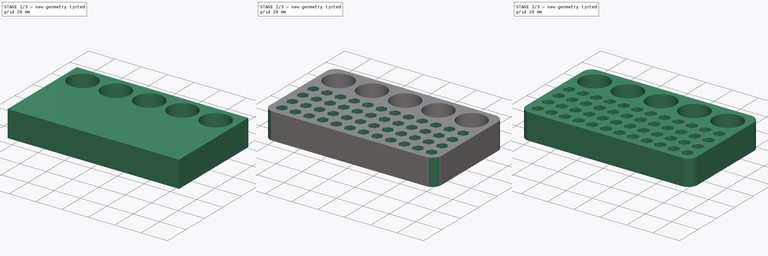
[diagram: build sequence overview — one tinted view per stage of 3, left to right]
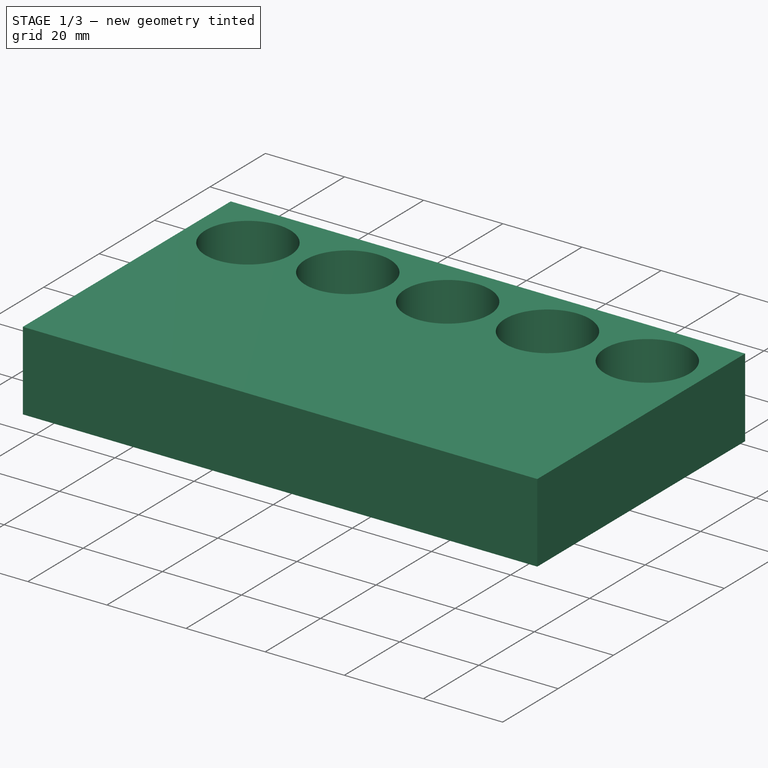
[diagram: stage 1 of 3 — iso view after this stage's code; geometry added in this stage tinted green]
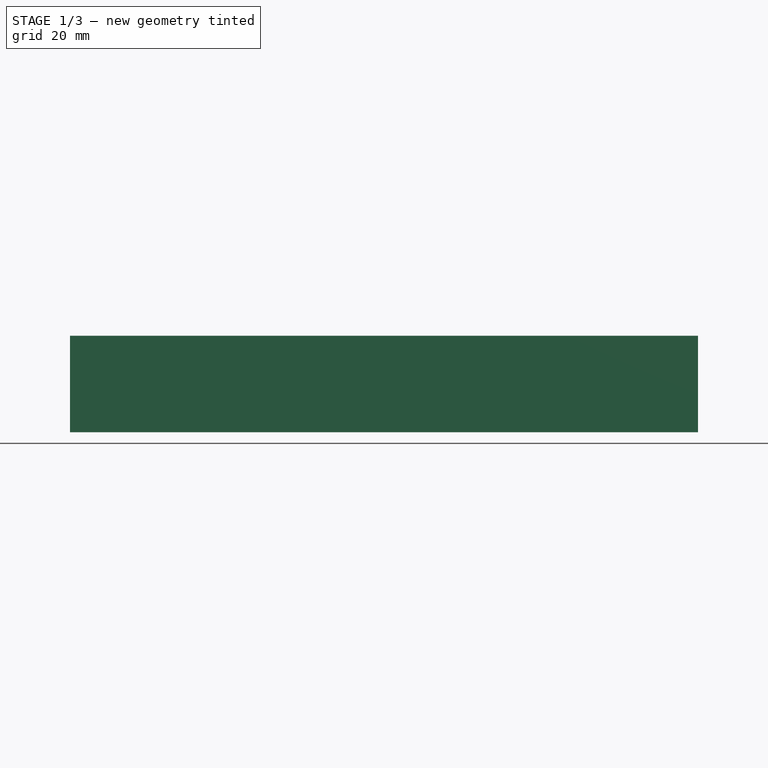
[diagram: stage 1 of 3 — front view after this stage's code; geometry added in this stage tinted green]
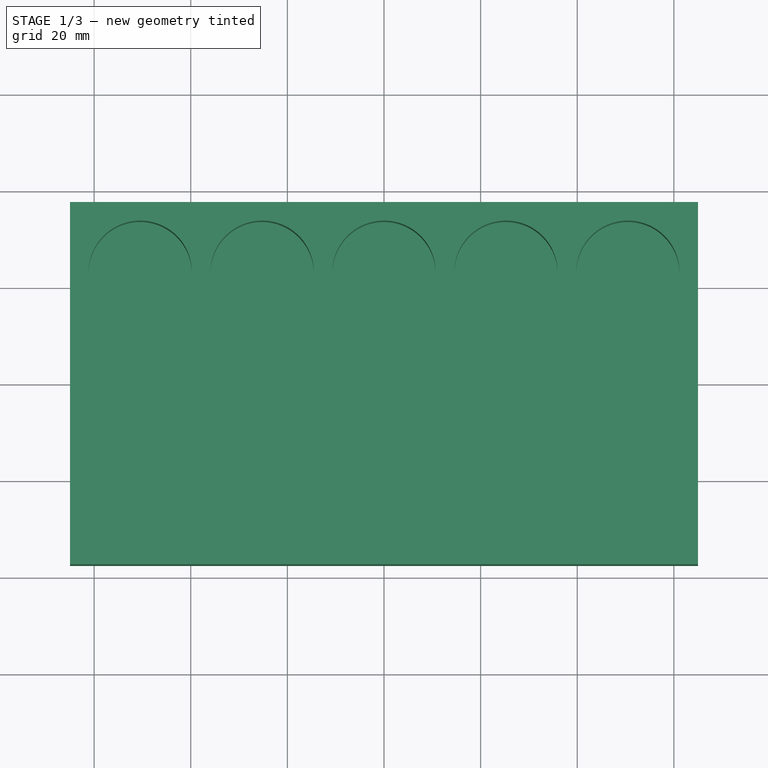
[diagram: stage 1 of 3 — top view after this stage's code; geometry added in this stage tinted green]
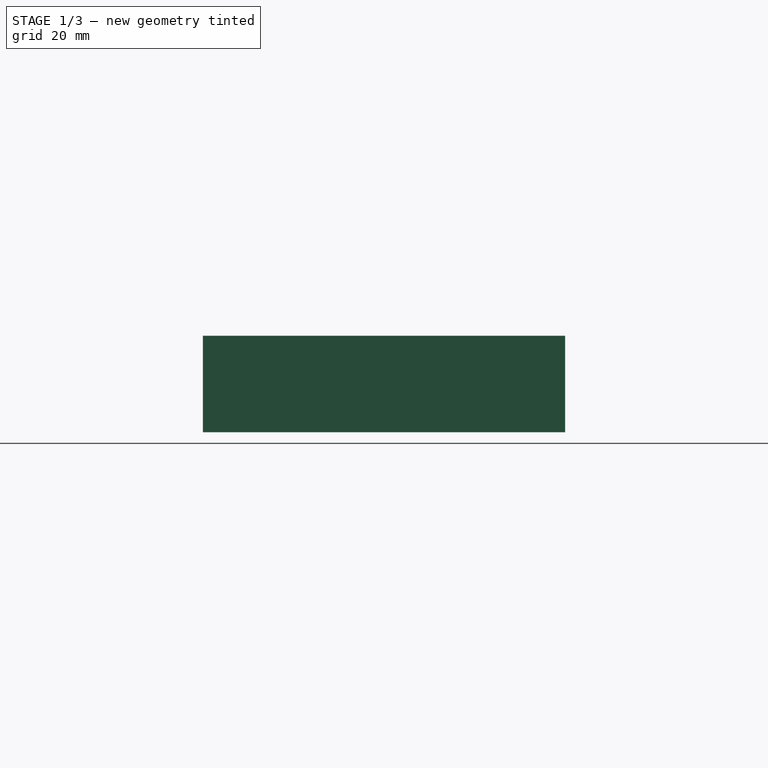
[diagram: stage 1 of 3 — right view after this stage's code; geometry added in this stage tinted green]
FCSTD DOCUMENT  (FreeCAD 0.22R37730 (Git))
Label: Hex Stand
License: All rights reserved
LicenseURL: http://en.wikipedia.org/wiki/All_rights_reserved
objects: Sketcher::SketchObject×3, PartDesign::Fillet×3, PartDesign::Pocket×2, PartDesign::Pad×1, PartDesign::LinearPattern×1, PartDesign::Body×1
note: 17 computed .brp shape members not serialized (recipe doc carries the construction recipe); baked Part::Feature solids carry a one-line shape summary decoded from their .brp

FEATURE [Sketcher::SketchObject] Sketch
  AttachmentSupport = -> [XY_Plane]
  FullyConstrained = true
  MapMode = 5
  Support = -> [XY_Plane]
  sketch-geometry (5):
    g0: LineSegment StartX=-65 StartY=37.5 StartZ=0 EndX=-65 EndY=-37.5 EndZ=0
    g1: LineSegment StartX=-65 StartY=-37.5 StartZ=0 EndX=65 EndY=-37.5 EndZ=0
    g2: LineSegment StartX=65 StartY=-37.5 StartZ=0 EndX=65 EndY=37.5 EndZ=0
    g3: LineSegment StartX=65 StartY=37.5 StartZ=0 EndX=-65 EndY=37.5 EndZ=0
    g4: GeomPoint X=0 Y=0 Z=0
  constraints (12):
    c: Coincident(g0,g1)
    c: Coincident(g1,g2)
    c: Coincident(g2,g3)
    c: Coincident(g3,g0)
    c: Vertical(g0)
    c: Vertical(g2)
    c: Horizontal(g1)
    c: Horizontal(g3)
    c: Symmetric(g2,g0,g4)
    c: DistanceY(g2,g2) = 75
    c: DistanceX(g3,g3) = 130
    c: Coincident(g4,g-1)
FEATURE [PartDesign::Pad] Pad
  Direction = (0,0,1)
  Length = 20
  Length2 = 10
  Profile = -> Sketch
  ReferenceAxis = -> Sketch [N_Axis]
  Suppressed = false
  Type = 0
FEATURE [Sketcher::SketchObject] Sketch001
  AttachmentSupport = -> [Pad]
  ExternalGeometry = -> [Pad]
  FullyConstrained = true
  MapMode = 5
  Placement = pos=(0,0,20) rot=(0,0,1;0rad)
  Support = -> [Pad]
  sketch-geometry (12):
    g0: Circle CenterX=-50.4667 CenterY=22.9667 CenterZ=0 NormalX=0 NormalY=0 NormalZ=1 AngleXU=0 Radius=10.7
    g1: Circle CenterX=-25.2333 CenterY=22.9667 CenterZ=0 NormalX=0 NormalY=0 NormalZ=1 AngleXU=0 Radius=10.7
    g2: Circle CenterX=1.9126e-12 CenterY=22.9667 CenterZ=0 NormalX=0 NormalY=0 NormalZ=1 AngleXU=0 Radius=10.7
    g3: Circle CenterX=25.2333 CenterY=22.9667 CenterZ=0 NormalX=0 NormalY=0 NormalZ=1 AngleXU=0 Radius=10.7
    g4: LineSegment StartX=-65 StartY=22.9667 StartZ=0 EndX=-61.1667 EndY=22.9667 EndZ=0
    g5: LineSegment StartX=-39.7667 StartY=22.9667 StartZ=0 EndX=-35.9333 EndY=22.9667 EndZ=0
    g6: LineSegment StartX=-14.5333 StartY=22.9667 StartZ=0 EndX=-10.7 EndY=22.9667 EndZ=0
    g7: LineSegment StartX=10.7 StartY=22.9667 StartZ=0 EndX=14.5333 EndY=22.9667 EndZ=0
    g8: LineSegment StartX=-50.4667 StartY=33.6667 StartZ=0 EndX=-50.4667 EndY=37.5 EndZ=0
    g9: Circle CenterX=50.4667 CenterY=22.9667 CenterZ=0 NormalX=0 NormalY=0 NormalZ=1 AngleXU=0 Radius=10.7
    g10: LineSegment StartX=35.9333 StartY=22.9667 StartZ=0 EndX=39.7667 EndY=22.9667 EndZ=0
    g11: LineSegment StartX=61.1667 StartY=22.9667 StartZ=0 EndX=65 EndY=22.9667 EndZ=0
  constraints (43):
    c: Diameter(g0) = 21.4
    c: Equal(g0,g1)
    c: Equal(g1,g2)
    c: Equal(g2,g3)
    c: Horizontal(g0,g1)
    c: Horizontal(g1,g2)
    c: Horizontal(g2,g3)
    c: PointOnObject(g4,g-3)
    c: PointOnObject(g4,g0)
    c: Horizontal(g4)
    c: Perpendicular(g0,g4)
    c: PointOnObject(g5,g0)
    c: PointOnObject(g5,g1)
    c: Perpendicular(g0,g5)
    c: Perpendicular(g1,g5)
    c: PointOnObject(g6,g1)
    c: PointOnObject(g6,g2)
    c: Perpendicular(g1,g6)
    c: Perpendicular(g2,g6)
    c: PointOnObject(g7,g2)
    c: PointOnObject(g7,g3)
    c: Perpendicular(g2,g7)
    c: Perpendicular(g3,g7)
    c: Equal(g4,g5)
    c: Equal(g5,g6)
    c: Equal(g6,g7)
    c: PointOnObject(g8,g0)
    c: PointOnObject(g8,g-5)
    c: Vertical(g8)
    c: Perpendicular(g0,g8)
    c: Equal(g4,g8)
    c: Equal(g3,g9)
    c: Horizontal(g9,g3)
    c: PointOnObject(g10,g3)
    c: PointOnObject(g10,g9)
    c: PointOnObject(g11,g9)
    c: PointOnObject(g11,g-4)
    c: Perpendicular(g9,g11)
    c: Perpendicular(g9,g10)
    c: Perpendicular(g3,g10)
    c: Horizontal(g11)
    c: Equal(g10,g11)
    c: Equal(g11,g7)
FEATURE [PartDesign::Pocket] Pocket
  BaseFeature = -> Pad
  Direction = (0,0,-1)
  Length = 18
  Length2 = 5
  Profile = -> Sketch001
  ReferenceAxis = -> Sketch001 [N_Axis]
  Suppressed = false
  Type = 0
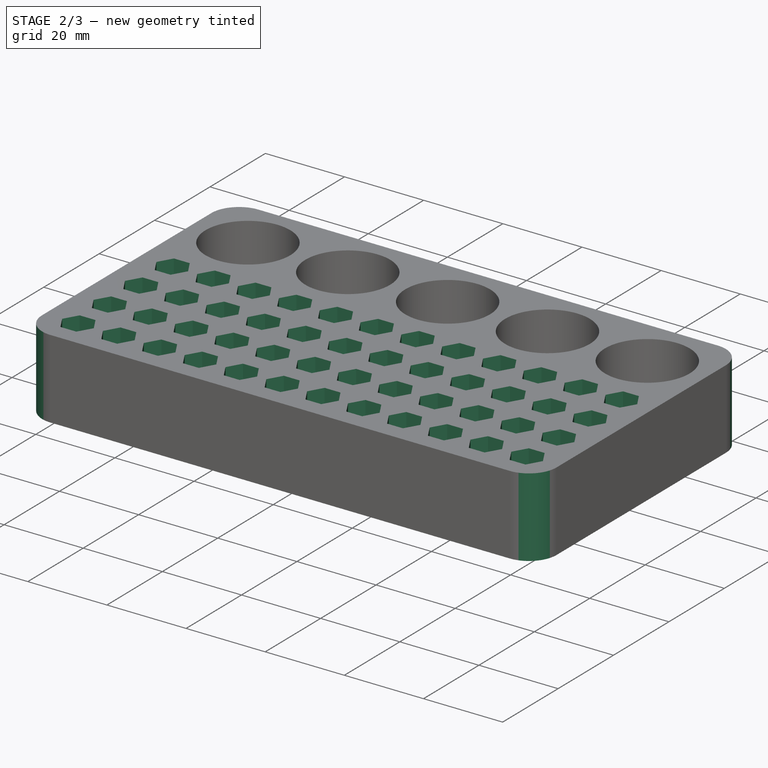
[diagram: stage 2 of 3 — iso view after this stage's code; geometry added in this stage tinted green]
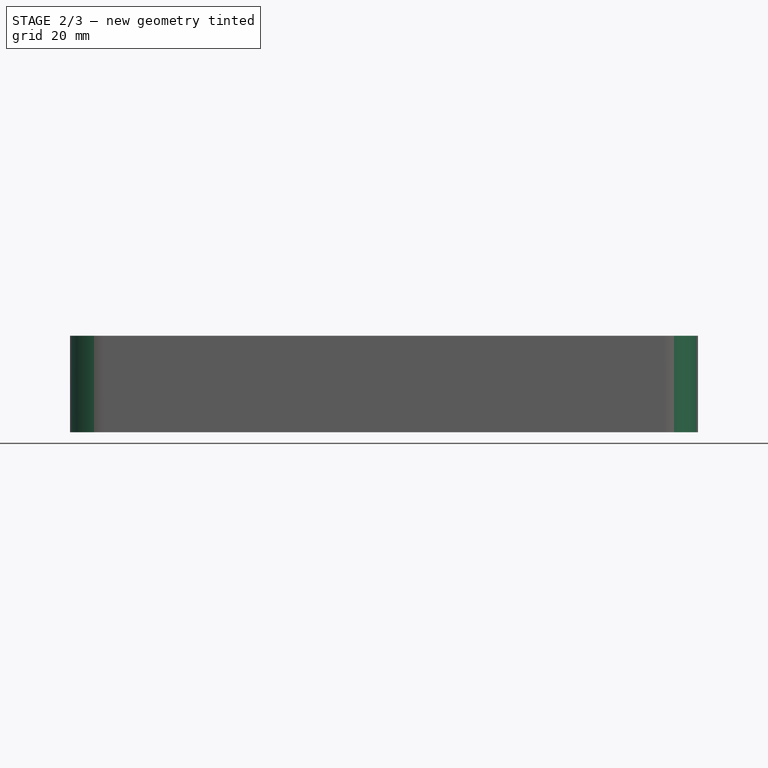
[diagram: stage 2 of 3 — front view after this stage's code; geometry added in this stage tinted green]
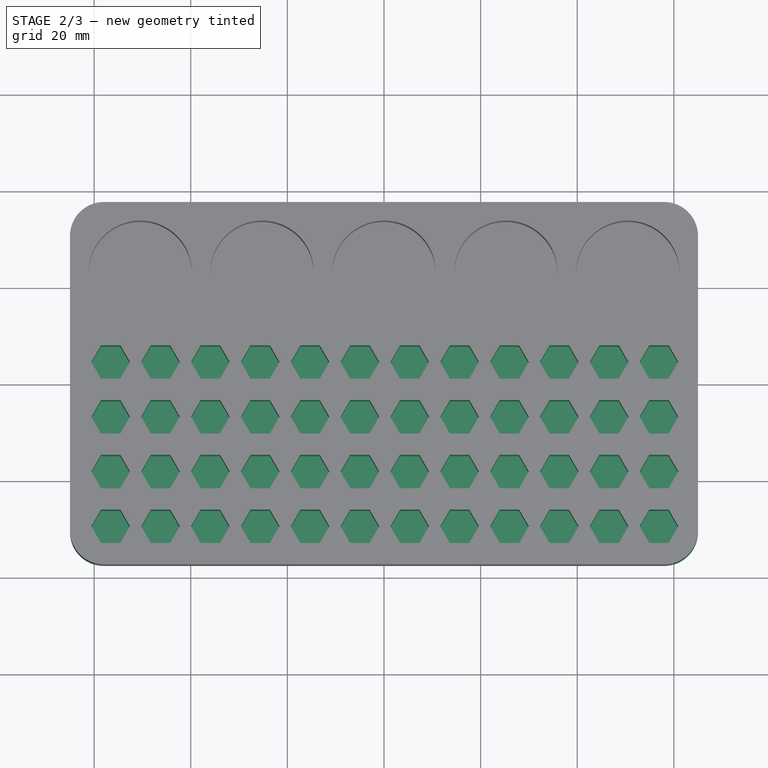
[diagram: stage 2 of 3 — top view after this stage's code; geometry added in this stage tinted green]
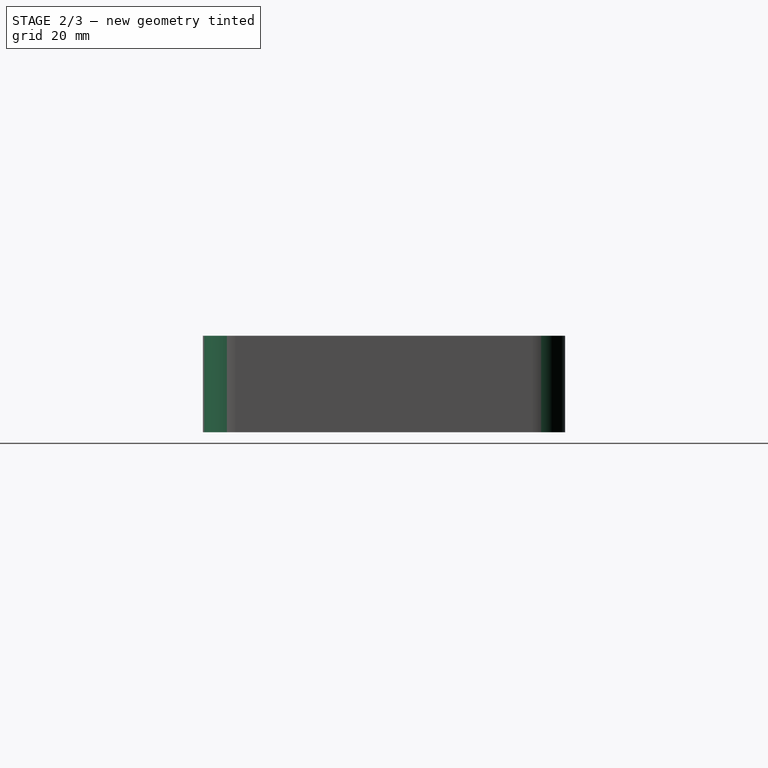
[diagram: stage 2 of 3 — right view after this stage's code; geometry added in this stage tinted green]
FEATURE [Sketcher::SketchObject] Sketch002
  AttachmentSupport = -> [Pocket]
  ExternalGeometry = -> [Pocket]
  FullyConstrained = false
  MapMode = 5
  Placement = pos=(0,0,20) rot=(0,0,1;0rad)
  Support = -> [Pocket]
  sketch-geometry (35):
    g0: LineSegment StartX=-65 StartY=12.2667 StartZ=0 EndX=-28.4556 EndY=12.2667 EndZ=0
    g1: LineSegment StartX=-54.5892 StartY=0.927693 StartZ=0 EndX=-52.5892 EndY=4.39179 EndZ=0
    g2: LineSegment StartX=-52.5892 StartY=4.39179 StartZ=0 EndX=-54.5892 EndY=7.8559 EndZ=0
    g3: LineSegment StartX=-54.5892 StartY=7.8559 StartZ=0 EndX=-58.5892 EndY=7.8559 EndZ=0
    g4: LineSegment StartX=-58.5892 StartY=7.8559 StartZ=0 EndX=-60.5892 EndY=4.39179 EndZ=0
    g5: LineSegment StartX=-60.5892 StartY=4.39179 StartZ=0 EndX=-58.5892 EndY=0.927693 EndZ=0
    g6: LineSegment StartX=-58.5892 StartY=0.927693 StartZ=0 EndX=-54.5892 EndY=0.927693 EndZ=0
    g7: Circle CenterX=-56.5892 CenterY=4.39179 CenterZ=0 NormalX=0 NormalY=0 NormalZ=1 AngleXU=0 Radius=4
    g8: LineSegment StartX=-54.5892 StartY=-10.4113 StartZ=0 EndX=-52.5892 EndY=-6.94718 EndZ=0
    g9: LineSegment StartX=-52.5892 StartY=-6.94718 StartZ=0 EndX=-54.5892 EndY=-3.48308 EndZ=0
    g10: LineSegment StartX=-54.5892 StartY=-3.48308 StartZ=0 EndX=-58.5892 EndY=-3.48308 EndZ=0
    g11: LineSegment StartX=-58.5892 StartY=-3.48308 StartZ=0 EndX=-60.5892 EndY=-6.94718 EndZ=0
    g12: LineSegment StartX=-60.5892 StartY=-6.94718 StartZ=0 EndX=-58.5892 EndY=-10.4113 EndZ=0
    g13: LineSegment StartX=-58.5892 StartY=-10.4113 StartZ=0 EndX=-54.5892 EndY=-10.4113 EndZ=0
    g14: Circle CenterX=-56.5892 CenterY=-6.94718 CenterZ=0 NormalX=0 NormalY=0 NormalZ=1 AngleXU=0 Radius=4
    g15: LineSegment StartX=-54.5892 StartY=-21.7503 StartZ=0 EndX=-52.5892 EndY=-18.2862 EndZ=0
    g16: LineSegment StartX=-52.5892 StartY=-18.2862 StartZ=0 EndX=-54.5892 EndY=-14.8221 EndZ=0
    g17: LineSegment StartX=-54.5892 StartY=-14.8221 StartZ=0 EndX=-58.5892 EndY=-14.8221 EndZ=0
    g18: LineSegment StartX=-58.5892 StartY=-14.8221 StartZ=0 EndX=-60.5892 EndY=-18.2862 EndZ=0
    g19: LineSegment StartX=-60.5892 StartY=-18.2862 StartZ=0 EndX=-58.5892 EndY=-21.7503 EndZ=0
    g20: LineSegment StartX=-58.5892 StartY=-21.7503 StartZ=0 EndX=-54.5892 EndY=-21.7503 EndZ=0
    g21: Circle CenterX=-56.5892 CenterY=-18.2862 CenterZ=0 NormalX=0 NormalY=0 NormalZ=1 AngleXU=0 Radius=4
    g22: LineSegment StartX=-54.5892 StartY=-33.0892 StartZ=0 EndX=-52.5892 EndY=-29.6251 EndZ=0
    g23: LineSegment StartX=-52.5892 StartY=-29.6251 StartZ=0 EndX=-54.5892 EndY=-26.161 EndZ=0
    g24: LineSegment StartX=-54.5892 StartY=-26.161 StartZ=0 EndX=-58.5892 EndY=-26.161 EndZ=0
    g25: LineSegment StartX=-58.5892 StartY=-26.161 StartZ=0 EndX=-60.5892 EndY=-29.6251 EndZ=0
    g26: LineSegment StartX=-60.5892 StartY=-29.6251 StartZ=0 EndX=-58.5892 EndY=-33.0892 EndZ=0
    g27: LineSegment StartX=-58.5892 StartY=-33.0892 StartZ=0 EndX=-54.5892 EndY=-33.0892 EndZ=0
    g28: Circle CenterX=-56.5892 CenterY=-29.6251 CenterZ=0 NormalX=0 NormalY=0 NormalZ=1 AngleXU=0 Radius=4
    g29: LineSegment StartX=-54.5892 StartY=12.2667 StartZ=0 EndX=-54.5892 EndY=7.8559 EndZ=0
    g30: LineSegment StartX=-54.5892 StartY=0.927693 StartZ=0 EndX=-54.5892 EndY=-3.48308 EndZ=0
    g31: LineSegment StartX=-54.5892 StartY=-10.4113 StartZ=0 EndX=-54.5892 EndY=-14.8221 EndZ=0
    g32: LineSegment StartX=-54.5892 StartY=-21.7503 StartZ=0 EndX=-54.5892 EndY=-26.161 EndZ=0
    g33: LineSegment StartX=-54.5892 StartY=-33.0892 StartZ=0 EndX=-54.5892 EndY=-37.5 EndZ=0
    g34: LineSegment StartX=-60.5892 StartY=-29.6251 StartZ=0 EndX=-65 EndY=-29.6251 EndZ=0
  constraints (86):
    c: PointOnObject(g0,g-3)
    c: Tangent(g0,g-5)
    c: Horizontal(g0)
    c: Coincident(g1,g2)
    c: Coincident(g2,g3)
    c: Coincident(g3,g4)
    c: Coincident(g4,g5)
    c: Coincident(g5,g6)
    c: Coincident(g6,g1)
    c: Equal(g1, g2-g6) x5
    c: PointOnObject(g1,g7)
    c: PointOnObject(g2,g7)
    c: PointOnObject(g3,g7)
    c: PointOnObject(g4,g7)
    c: PointOnObject(g5,g7)
    c: PointOnObject(g6,g7)
    c: Coincident(g8,g9)
    c: Coincident(g9,g10)
    c: Coincident(g10,g11)
    c: Coincident(g11,g12)
    c: Coincident(g12,g13)
    c: Coincident(g13,g8)
    c: Equal(g8, g9-g13) x5
    c: PointOnObject(g8,g14)
    c: PointOnObject(g9,g14)
    c: PointOnObject(g10,g14)
    c: PointOnObject(g11,g14)
    c: PointOnObject(g12,g14)
    c: PointOnObject(g13,g14)
    c: Coincident(g15,g16)
    c: Coincident(g16,g17)
    c: Coincident(g17,g18)
    c: Coincident(g18,g19)
    c: Coincident(g19,g20)
    c: Coincident(g20,g15)
    c: Equal(g15, g16-g20) x5
    c: PointOnObject(g15,g21)
    c: PointOnObject(g16,g21)
    c: PointOnObject(g17,g21)
    c: PointOnObject(g18,g21)
    c: PointOnObject(g19,g21)
    c: PointOnObject(g20,g21)
    c: Coincident(g22,g23)
    c: Coincident(g23,g24)
    c: Coincident(g24,g25)
    c: Coincident(g25,g26)
    c: Coincident(g26,g27)
    c: Coincident(g27,g22)
    c: Equal(g22, g23-g27) x5
    c: PointOnObject(g22,g28)
    c: PointOnObject(g23,g28)
    c: PointOnObject(g24,g28)
    c: PointOnObject(g25,g28)
    c: PointOnObject(g26,g28)
    c: PointOnObject(g27,g28)
    c: Equal(g21,g14)
    c: Equal(g14,g7)
    c: Equal(g28,g21)
    c: Horizontal(g6)
    c: Horizontal(g13)
    c: Horizontal(g20)
    c: Horizontal(g27)
    c: Vertical(g7,g14)
    c: Vertical(g14,g21)
    c: Vertical(g21,g28)
    c: PointOnObject(g29,g0)
    c: Coincident(g30,g1)
    c: Coincident(g30,g9)
    c: Coincident(g31,g8)
    c: Coincident(g31,g16)
    c: Coincident(g32,g15)
    c: Coincident(g32,g23)
    c: Coincident(g33,g22)
    c: PointOnObject(g33,g-4)
    c: Vertical(g33)
    c: Coincident(g34,g25)
    c: PointOnObject(g34,g-3)
    c: Horizontal(g34)
    c: Vertical(g29)
    c: Equal(g29,g30)
    c: Equal(g30,g31)
    c: Equal(g31,g32)
    c: Equal(g32,g33)
    c: Equal(g33,g34)
    c: Diameter(g7) = 8
    c: Coincident(g29,g2)
FEATURE [PartDesign::Pocket] Pocket001
  BaseFeature = -> Pocket
  Direction = (0,0,-1)
  Length = 18
  Length2 = 5
  Profile = -> Sketch002
  ReferenceAxis = -> Sketch002 [N_Axis]
  Suppressed = false
  Type = 0
FEATURE [PartDesign::LinearPattern] LinearPattern
  BaseFeature = -> Pocket001
  Direction = -> Sketch002 [H_Axis]
  Length = 113.5
  Mode = 0
  Occurrences = 12
  Offset = 10.3182
  Originals = -> [Pocket001]
  Suppressed = false
  TransformMode = 0
FEATURE [PartDesign::Fillet] Fillet
  Base = -> LinearPattern [Edge5,Edge8,Edge2,Edge1]
  BaseFeature = -> LinearPattern
  Radius = 7
  SupportTransform = false
  Suppressed = false
  UseAllEdges = false
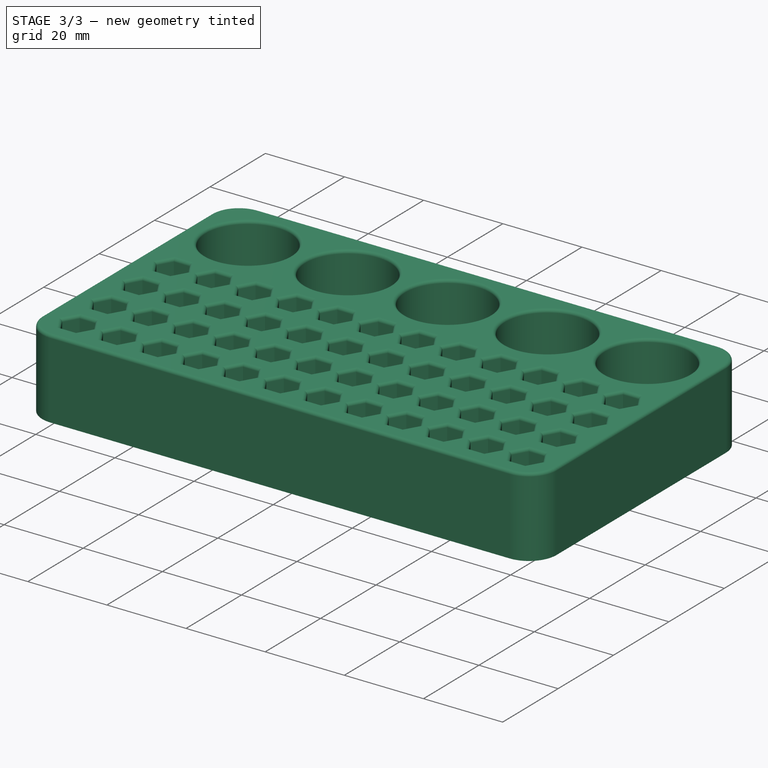
[diagram: stage 3 of 3 — iso view after this stage's code; geometry added in this stage tinted green]
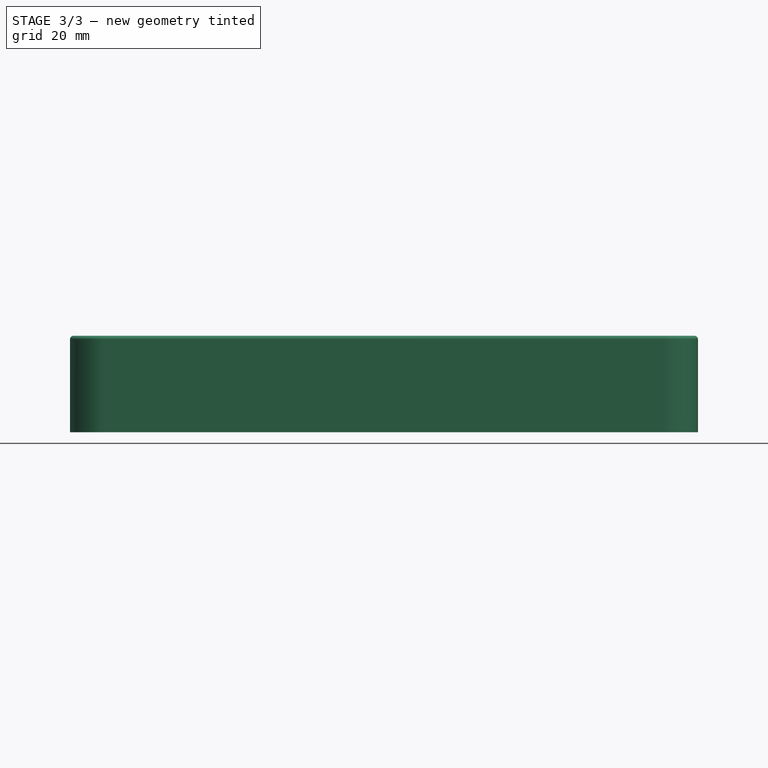
[diagram: stage 3 of 3 — front view after this stage's code; geometry added in this stage tinted green]
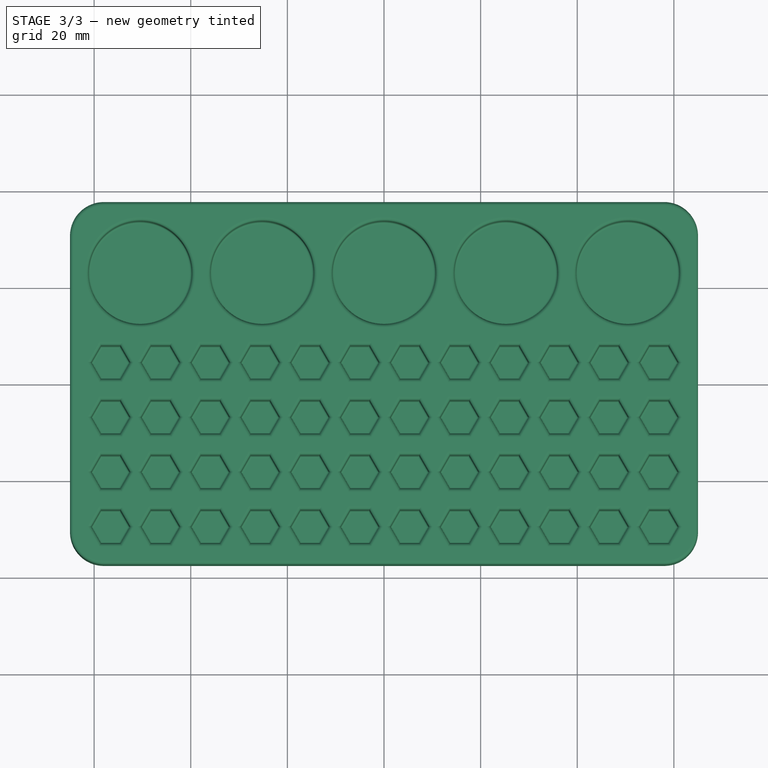
[diagram: stage 3 of 3 — top view after this stage's code; geometry added in this stage tinted green]
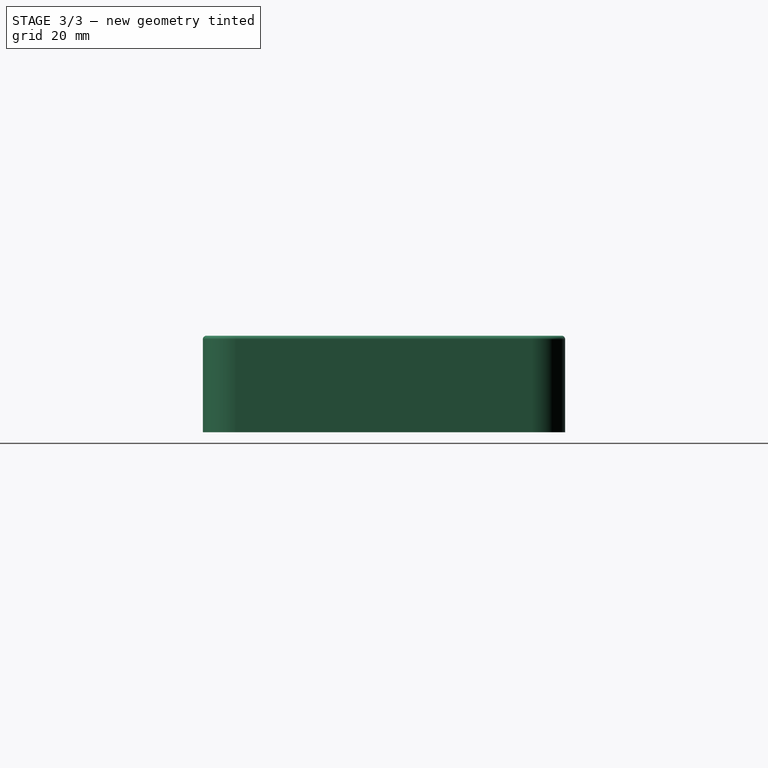
[diagram: stage 3 of 3 — right view after this stage's code; geometry added in this stage tinted green]
FEATURE [PartDesign::Fillet] Fillet001
  Base = -> Fillet [Face5]
  BaseFeature = -> Fillet
  Radius = 0.75
  SupportTransform = false
  Suppressed = false
  UseAllEdges = false
FEATURE [PartDesign::Fillet] Fillet002
  Base = -> Fillet001 [Face647,Face648,Face655,Face656,Face657,Face654,Face653,Face652,Face651,Face650,Face649,Face646,Face645,Face644,Face643,Face642,Face641,Face617,Face618,Face619,Face620,Face621,Face622,Face635,Face636,Face637,Face638,Face639,Face640,Face634,Face633,Face632,Face628,Face627,Face626,Face616,Face615,Face614,Face610,Face609,+13 more]
  BaseFeature = -> Fillet001
  Radius = 0.5
  SupportTransform = false
  Suppressed = false
  UseAllEdges = false
FEATURE [PartDesign::Body] Body
  AllowCompound = false
  Group = -> [Sketch,Pad,Sketch001,Pocket,Sketch002,Pocket001,LinearPattern,Fillet,Fillet001,Fillet002]
  Origin = -> Origin
  Tip = -> Fillet002
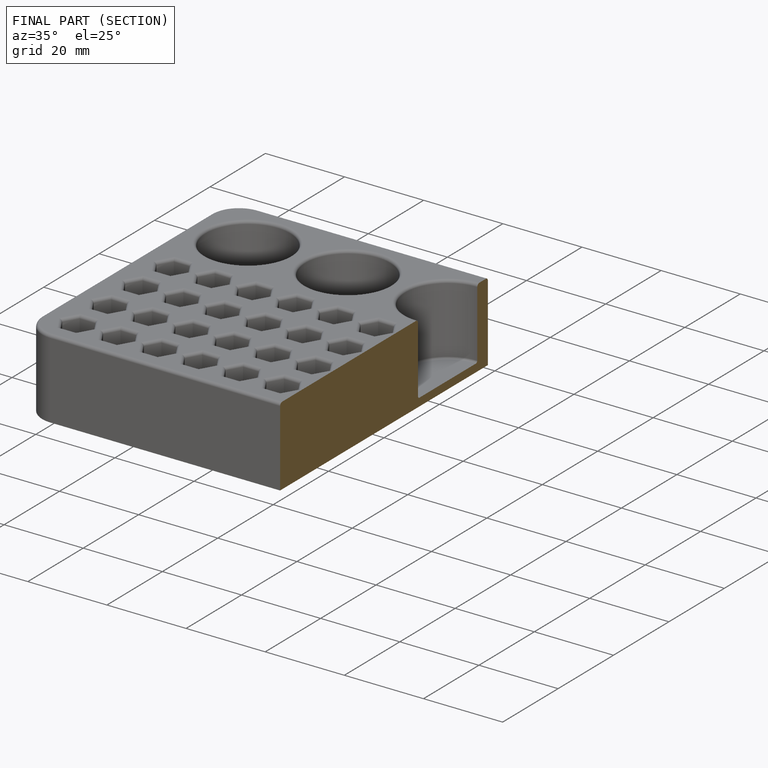
[diagram: finished part — half-section view (interior)]
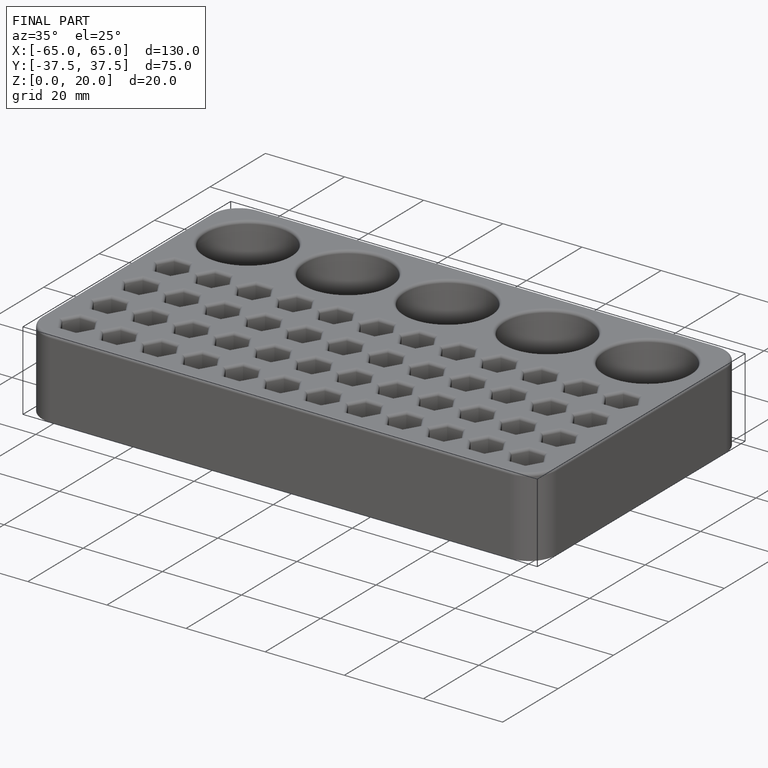
[diagram: finished part — iso view with bounding-box wireframe]
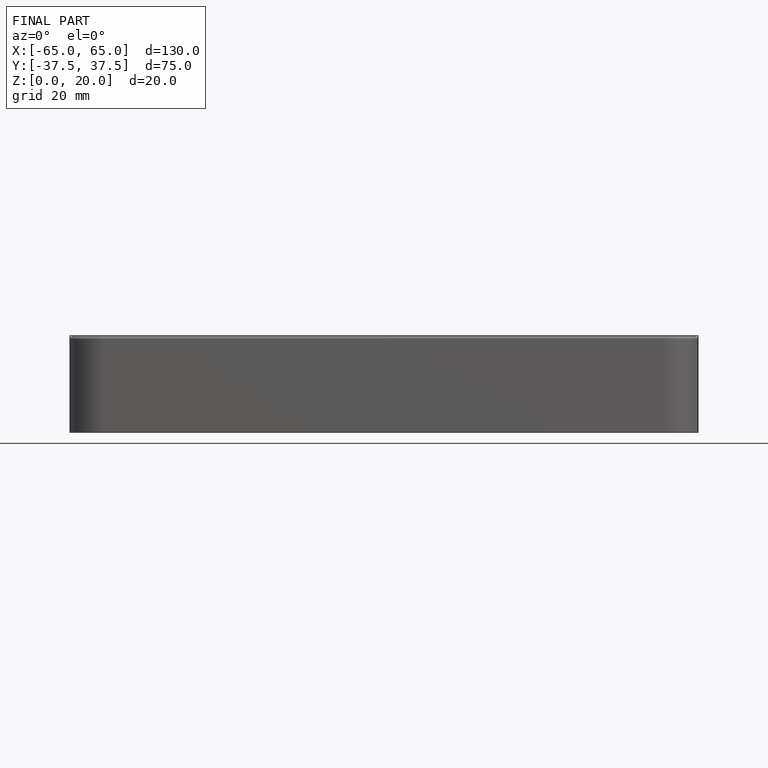
[diagram: finished part — front view with bounding-box wireframe]
